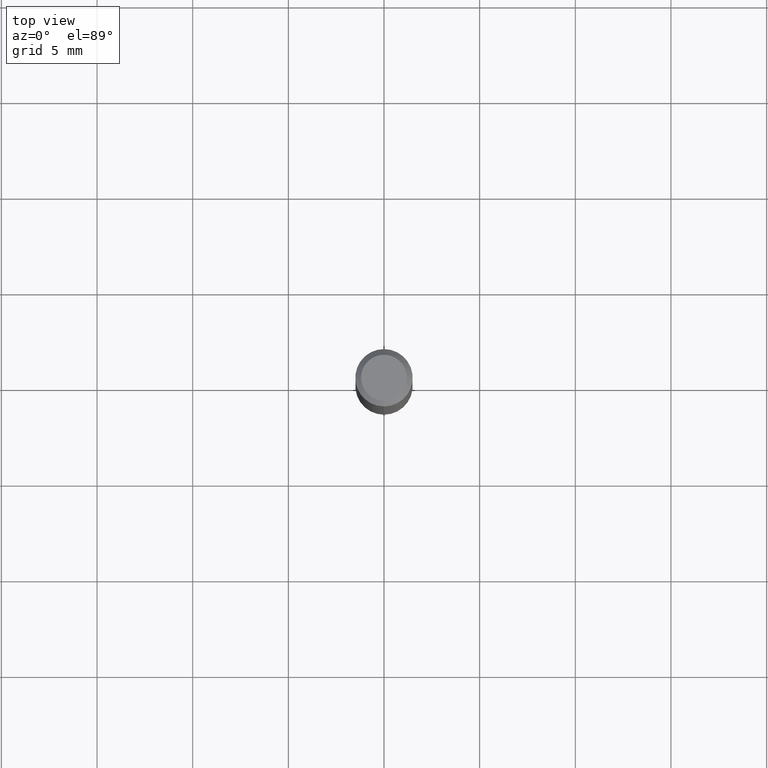
[diagram: clean part render]
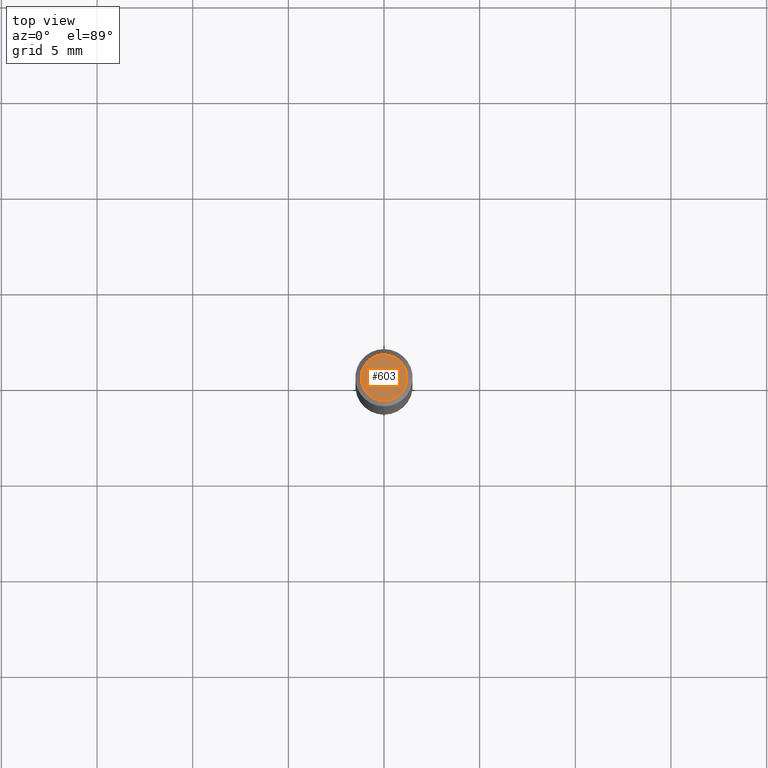
[diagram: same view with one face highlighted and labeled with its STEP entity id]
A machine part, top view. The second image highlights one B-rep face of the part: STEP entity #603.
In plain terms, the highlighted planar face has unit normal (-0, 0, 1).
Its self-contained STEP definition (entity closure, byte-faithful):
#299=VERTEX_POINT('',#830);
#603=ADVANCED_FACE('',(#1162),#1163,.T.);
#617=EDGE_CURVE('',#299,#795,#1181,.T.);
#645=EDGE_CURVE('',#795,#299,#1211,.T.);
#795=VERTEX_POINT('',#1374);
#830=CARTESIAN_POINT('',(1.46952762458685E-016,-1.2,0.0));
#1162=FACE_OUTER_BOUND('',#4114,.T.);
#1163=PLANE('',#4115);
#1181=CIRCLE('',#4150,1.2);
#1211=CIRCLE('',#4546,1.2);
#1374=CARTESIAN_POINT('',(0.0,1.2,0.0));
#4114=EDGE_LOOP('',(#5672,#5673));
#4115=AXIS2_PLACEMENT_3D('',#5674,#5675,#5676);
#4150=AXIS2_PLACEMENT_3D('',#5718,#5719,#5720);
#4546=AXIS2_PLACEMENT_3D('',#5759,#5760,#5761);
#5672=ORIENTED_EDGE('',*,*,#645,.F.);
#5673=ORIENTED_EDGE('',*,*,#617,.F.);
#5674=CARTESIAN_POINT('',(0.0,0.6,0.0));
#5675=DIRECTION('',(-0.0,0.0,1.0));
#5676=DIRECTION('',(0.0,-1.0,0.0));
#5718=CARTESIAN_POINT('',(0.0,0.0,0.0));
#5719=DIRECTION('',(0.0,0.0,-1.0));
#5720=DIRECTION('',(0.0,1.0,0.0));
#5759=CARTESIAN_POINT('',(0.0,0.0,0.0));
#5760=DIRECTION('',(0.0,0.0,-1.0));
#5761=DIRECTION('',(0.0,1.0,0.0));